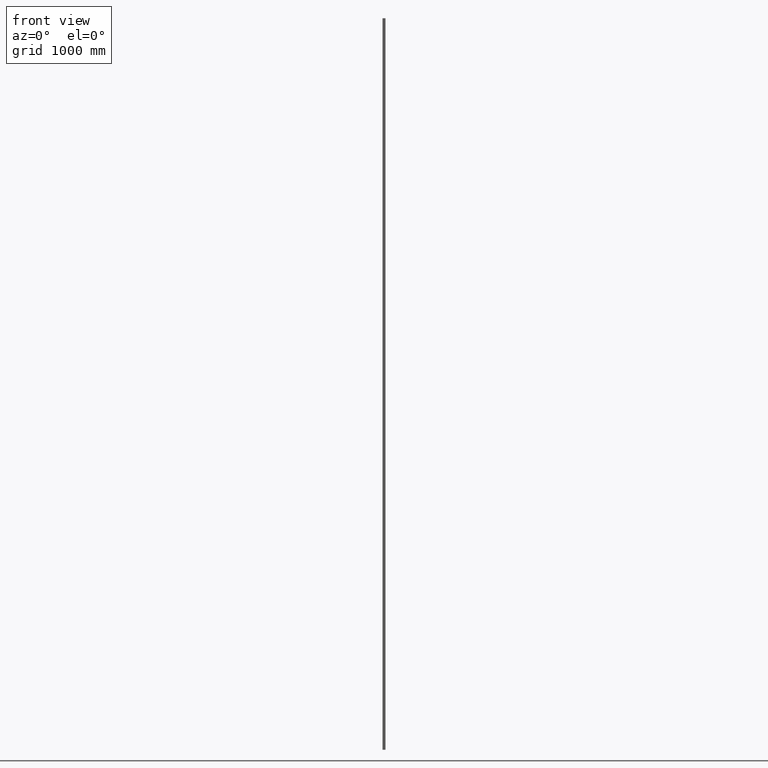
[diagram: clean part render]
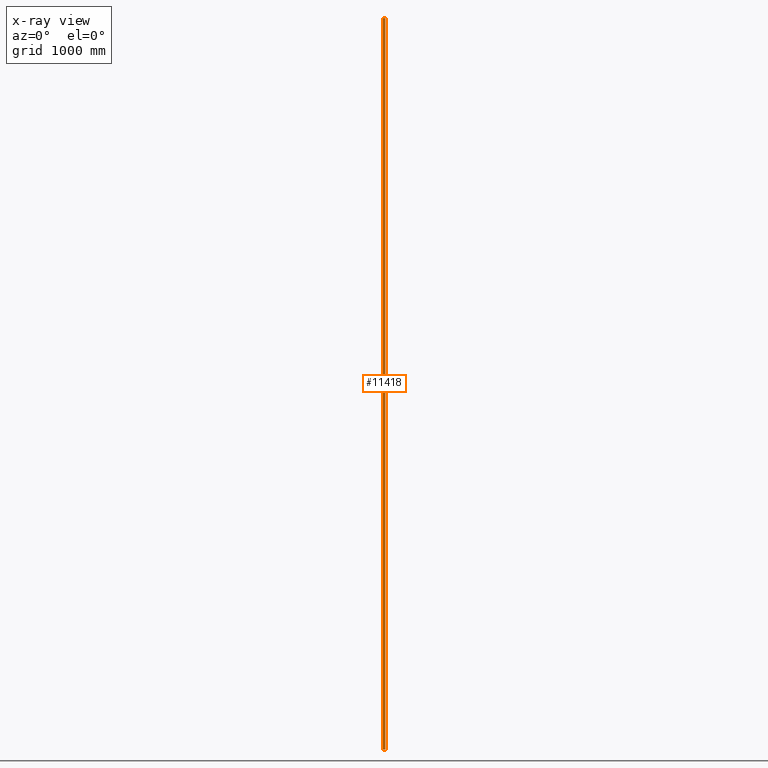
[diagram: x-ray — body ghosted, one internal face saturated and labeled with its STEP entity id]
A machine part, front view, then the same camera in x-ray: the body is ghosted and one INTERNAL B-rep face — a face not visible from any outside direction — is saturated and labeled: STEP entity #11418.
In plain terms, the highlighted planar face has unit normal (0, -1, 0).
Its self-contained STEP definition (entity closure, byte-faithful):
#82 = DIRECTION ( 'NONE',  ( -0.000000000000000000, -0.000000000000000000, -1.000000000000000000 ) ) ;
#518 = DIRECTION ( 'NONE',  ( -1.000000000000000000, -0.000000000000000000, -0.000000000000000000 ) ) ;
#1280 = LINE ( 'NONE', #4671, #3511 ) ;
#2109 = CARTESIAN_POINT ( 'NONE',  ( -10.55000000000000071, 6.000000000000000000, 3000.000000000000000 ) ) ;
#2486 = LINE ( 'NONE', #8900, #17058 ) ;
#2619 = VECTOR ( 'NONE', #82, 1000.000000000000000 ) ;
#2708 = DIRECTION ( 'NONE',  ( 0.000000000000000000, -0.000000000000000000, -1.000000000000000000 ) ) ;
#3326 = ORIENTED_EDGE ( 'NONE', *, *, #4632, .T. ) ;
#3469 = EDGE_CURVE ( 'NONE', #3842, #11224, #11676, .T. ) ;
#3511 = VECTOR ( 'NONE', #518, 1000.000000000000000 ) ;
#3605 = ORIENTED_EDGE ( 'NONE', *, *, #11057, .T. ) ;
#3842 = VERTEX_POINT ( 'NONE', #10280 ) ;
#4632 = EDGE_CURVE ( 'NONE', #5493, #11440, #1280, .T. ) ;
#4671 = CARTESIAN_POINT ( 'NONE',  ( -10.55000000000000071, 6.000000000000000000, -3000.000000000000000 ) ) ;
#5493 = VERTEX_POINT ( 'NONE', #12078 ) ;
#6097 = DIRECTION ( 'NONE',  ( -0.000000000000000000, -0.000000000000000000, -1.000000000000000000 ) ) ;
#6581 = EDGE_LOOP ( 'NONE', ( #3326, #13703, #13079, #3605 ) ) ;
#6841 = PLANE ( 'NONE',  #18254 ) ;
#8180 = CARTESIAN_POINT ( 'NONE',  ( -10.55000000000000071, 6.000000000000000000, 3000.000000000000000 ) ) ;
#8445 = CARTESIAN_POINT ( 'NONE',  ( 10.55000000000000071, 6.000000000000000000, 3000.000000000000000 ) ) ;
#8900 = CARTESIAN_POINT ( 'NONE',  ( -10.55000000000000071, 6.000000000000000000, 3000.000000000000000 ) ) ;
#10280 = CARTESIAN_POINT ( 'NONE',  ( 10.55000000000000071, 6.000000000000000000, 3000.000000000000000 ) ) ;
#10424 = DIRECTION ( 'NONE',  ( -1.000000000000000000, -0.000000000000000000, -0.000000000000000000 ) ) ;
#10537 = CARTESIAN_POINT ( 'NONE',  ( -10.55000000000000071, 6.000000000000000000, 3000.000000000000000 ) ) ;
#11057 = EDGE_CURVE ( 'NONE', #3842, #5493, #11439, .T. ) ;
#11224 = VERTEX_POINT ( 'NONE', #10537 ) ;
#11418 = ADVANCED_FACE ( 'NONE', ( #12535 ), #6841, .F. ) ;
#11439 = LINE ( 'NONE', #8445, #2619 ) ;
#11440 = VERTEX_POINT ( 'NONE', #15358 ) ;
#11676 = LINE ( 'NONE', #2109, #14110 ) ;
#12078 = CARTESIAN_POINT ( 'NONE',  ( 10.55000000000000071, 6.000000000000000000, -3000.000000000000000 ) ) ;
#12535 = FACE_OUTER_BOUND ( 'NONE', #6581, .T. ) ;
#13079 = ORIENTED_EDGE ( 'NONE', *, *, #3469, .F. ) ;
#13703 = ORIENTED_EDGE ( 'NONE', *, *, #17271, .F. ) ;
#14110 = VECTOR ( 'NONE', #10424, 1000.000000000000000 ) ;
#15358 = CARTESIAN_POINT ( 'NONE',  ( -10.55000000000000071, 6.000000000000000000, -3000.000000000000000 ) ) ;
#15418 = DIRECTION ( 'NONE',  ( 0.000000000000000000, -1.000000000000000000, 0.000000000000000000 ) ) ;
#17058 = VECTOR ( 'NONE', #6097, 1000.000000000000000 ) ;
#17271 = EDGE_CURVE ( 'NONE', #11224, #11440, #2486, .T. ) ;
#18254 = AXIS2_PLACEMENT_3D ( 'NONE', #8180, #15418, #2708 ) ;